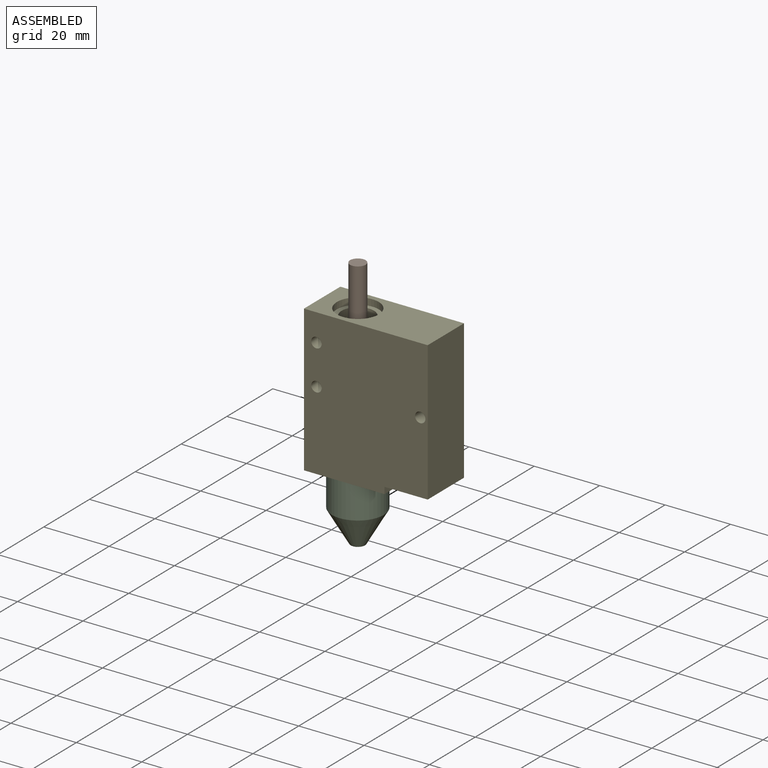
[diagram: assembled view]
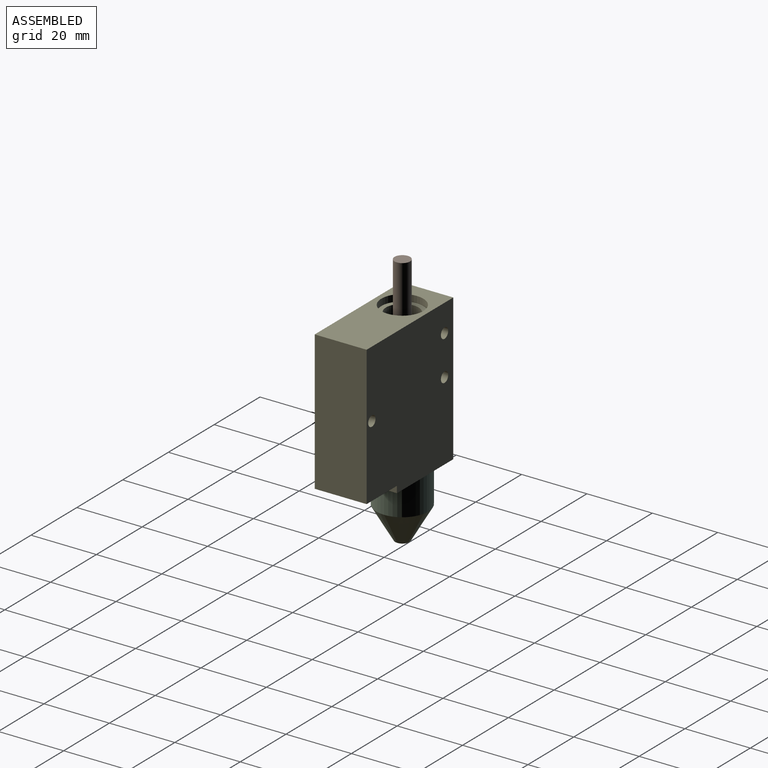
[diagram: assembled view, second angle]
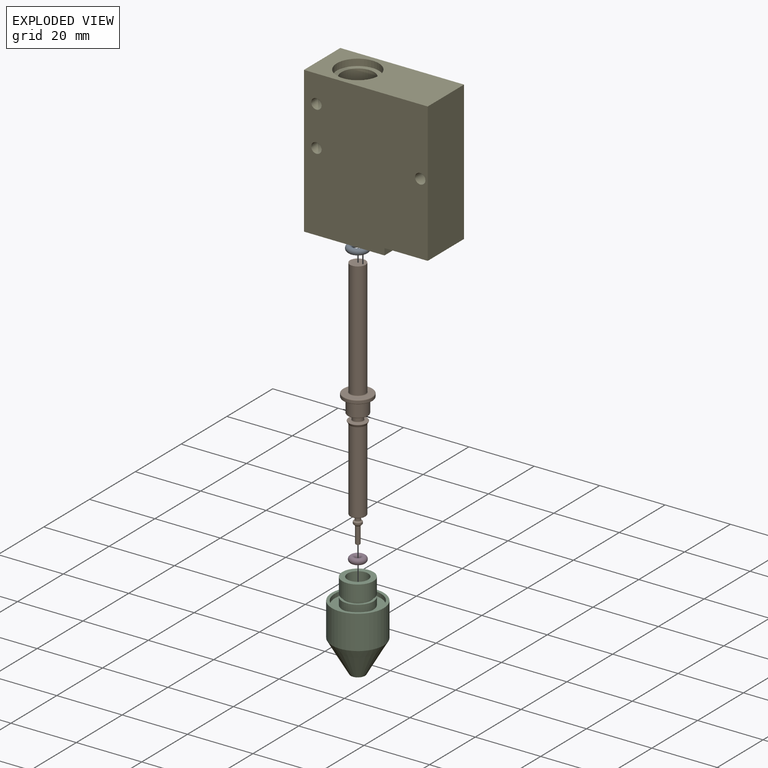
[diagram: exploded view]
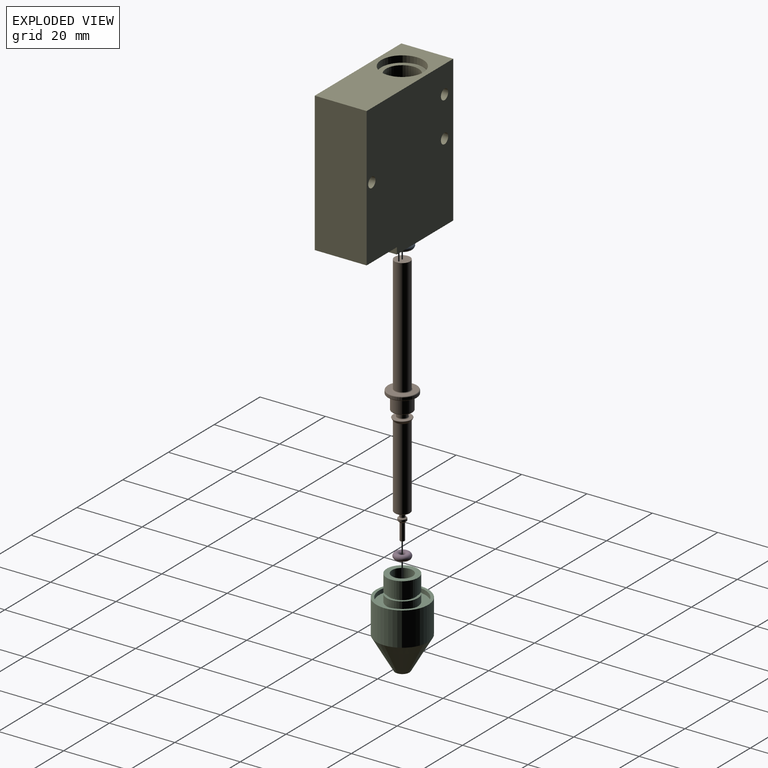
[diagram: exploded view, second angle]
ASSEMBLY  parts=5 mates=4
PART A: 1 faces, bbox 7x7x1.8 mm
  f0: torus R=2.34mm, axis (0,0,1), area 82mm2
PART B: 35 faces, bbox 9.7x9.7x77.8 mm
  f0: cylinder r=2.38mm len=35.69mm, axis (0,0,1), area 533.9mm2, adj f17,f25
  f1: plane 8.41x8.41mm, normal (0,0,1), area 33.7mm2, adj f25,f26
  f2: cylinder r=4.46mm len=8.92mm, axis (0,0,1), area 21.3mm2, adj f26,f27
  f3: plane 8.41x8.41mm, normal (0,0,-1), area 20.2mm2, adj f27,f28
  f4: cylinder r=3.1mm len=6.2mm, axis (0,0,1), area 77.2mm2, adj f28,f29
  f5: cone r=3.1mm half-angle=88.6deg, axis (0,0,-1), area 14.6mm2, adj f29,f30
  f6: cylinder r=1.59mm len=3.18mm, axis (0,0,1), area 13.9mm2, adj f30,f31
  f7: plane 5.35x5.35mm, normal (0,0,1), area 11.8mm2, adj f18,f31
  f8: cone r=2.38mm half-angle=30deg, axis (0,0,1), area 12.1mm2, adj f18,f32
  f9: cylinder r=2.38mm len=24.89mm, axis (0,0,1), area 372.5mm2, adj f19,f32
  f10: cone r=2.2mm half-angle=45deg, axis (0,0,1), area 0.6mm2, adj f19,f20
  f11: plane 4.19x4.19mm, normal (0,0,-1), area 10.2mm2, adj f20,f21
  f12: cylinder r=0.81mm len=1.63mm, axis (0,0,1), area 5.9mm2, adj f21,f33
  f13: cylinder r=1.27mm len=2.54mm, axis (0,0,1), area 3.4mm2, adj f22,f23
  f14: cone r=1.27mm half-angle=50deg, axis (0,0,1), area 3.1mm2, adj f23,f24
  f15: cylinder r=0.71mm len=4.83mm, axis (0,0,1), area 21.6mm2, adj f24,f34
  f16: plane 0.91x0.91mm, normal (0,0,-1), area 0.7mm2, adj f34
  f17: plane 4.76x4.76mm, normal (0,0,1), area 17.8mm2, adj f0
  f18: torus R=2.67mm, axis (0,0,-1), area 4.6mm2, adj f7,f8
  f19: torus R=2.13mm, axis (0,0,-1), area 3mm2, adj f9,f10
  f20: torus R=2.1mm, axis (0,0,1), area 2.7mm2, adj f10,f11
  f21: torus R=1.07mm, axis (0,0,1), area 2.3mm2, adj f11,f12
  f22: torus R=1.02mm, axis (0,0,-1), area 2.8mm2, adj f13,f33
  f23: torus R=1.02mm, axis (0,0,-1), area 1.7mm2, adj f13,f14
  f24: torus R=0.97mm, axis (0,0,1), area 1mm2, adj f14,f15
  f25: torus R=2.64mm, axis (0,0,-1), area 6.2mm2, adj f0,f1
  f26: torus R=4.2mm, axis (0,0,-1), area 10.9mm2, adj f1,f2
  f27: torus R=4.2mm, axis (0,0,-1), area 10.9mm2, adj f2,f3
  f28: torus R=3.35mm, axis (0,0,-1), area 8mm2, adj f3,f4
  f29: torus R=2.84mm, axis (0,0,-1), area 7.6mm2, adj f4,f5
  f30: torus R=1.84mm, axis (0,0,1), area 4.3mm2, adj f5,f6
  f31: torus R=1.84mm, axis (0,0,-1), area 4.2mm2, adj f6,f7
  f32: torus R=2.64mm, axis (0,0,1), area 2mm2, adj f8,f9
  f33: torus R=1.07mm, axis (0,0,1), area 2.1mm2, adj f12,f22
  f34: torus R=0.46mm, axis (0,0,1), area 1.6mm2, adj f15,f16
PART C: 19 faces, bbox 15.9x15.9x26.9 mm
  f0: cylinder r=7.05mm len=14.1mm, axis (0,0,1), area 56.2mm2, adj f1,f14
  f1: plane 15.88x15.88mm, normal (0,0,1), area 41.9mm2, adj f0,f2
  f2: cylinder r=7.94mm len=15.88mm, axis (0,0,1), area 514.3mm2, adj f1,f3
  f3: cone r=7.94mm half-angle=30deg, axis (0,0,1), area 364.6mm2, adj f2,f15
  f4: plane 4.02x4.02mm, normal (0,0,-1), area 2.1mm2, adj f15,f16
  f5: cylinder r=1.59mm len=5.99mm, axis (0,0,1), area 59.8mm2, adj f16,f17
  f6: cone r=3.17mm half-angle=45deg, axis (0,0,1), area 30.4mm2, adj f17,f18
  f7: cylinder r=3.17mm len=18.88mm, axis (0,0,1), area 376.7mm2, adj f8,f18
  f8: plane 9.53x9.53mm, normal (0,0,1), area 39.6mm2, adj f7,f9
  f9: cylinder r=4.76mm len=9.53mm, axis (0,0,1), area 144.4mm2, adj f8,f10
  f10: plane 9.53x9.53mm, normal (0,0,-1), area 21mm2, adj f9,f11
  f11: cylinder r=4mm len=8mm, axis (0,0,1), area 19.2mm2, adj f10,f12
  f12: plane 9.53x9.53mm, normal (0,0,1), area 21mm2, adj f11,f13
  f13: cylinder r=4.76mm len=9.53mm, axis (0,0,1), area 68.4mm2, adj f12,f14
  f14: plane 14.1x14.1mm, normal (0,0,1), area 84.8mm2, adj f0,f13
  f15: torus R=2.01mm, axis (0,0,1), area 3.6mm2, adj f3,f4
  f16: torus R=1.84mm, axis (0,0,1), area 4.2mm2, adj f4,f5
  f17: torus R=1.84mm, axis (0,0,-1), area 2mm2, adj f5,f6
  f18: torus R=2.92mm, axis (0,0,1), area 3.9mm2, adj f6,f7
PART D: 1 faces, bbox 5.4x5.4x1.8 mm
  f0: torus R=1.6mm, axis (0,0,1), area 56.2mm2
PART E: 20 faces, bbox 37.8x15.9x44.7 mm
  f0: plane 37.85x15.88mm, normal (0,0,1), area 471.1mm2, adj f1,f8,f9,f10,f19
  f1: plane 44.7x15.88mm, normal (-1,0,0), area 709.7mm2, adj f0,f2,f9,f10
  f2: plane 24.64x15.88mm, normal (0,0,-1), area 314.1mm2, adj f1,f3,f9,f10,f11
  f3: plane 15.88x2.03mm, normal (1,0,0), area 32.3mm2, adj f2,f4,f9,f10
  f4: plane 15.88x13.21mm, normal (0,0,-1), area 209.7mm2, adj f3,f8,f9,f10
  f5: cylinder r=1.59mm len=15.88mm, axis (0,1,0), area 158.3mm2, adj f9,f10
  f6: cylinder r=1.59mm len=15.88mm, axis (0,1,0), area 158.3mm2, adj f9,f10
  f7: cylinder r=1.59mm len=15.88mm, axis (0,1,0), area 158.3mm2, adj f9,f10
  f8: plane 42.67x15.88mm, normal (1,0,0), area 677.4mm2, adj f0,f4,f9,f10
  f9: plane 44.7x37.85mm, normal (0,-1,0), area 1641.3mm2, adj f0,f1,f2,f3,f4,f5,f6,f7
  f10: plane 44.7x37.85mm, normal (0,1,0), area 1641.3mm2, adj f0,f1,f2,f3,f4,f5,f6,f7
  f11: cylinder r=4.95mm len=9.91mm, axis (0,0,1), area 63.2mm2, adj f2,f12
  f12: plane 9.91x9.91mm, normal (0,0,-1), area 21.2mm2, adj f11,f13
  f13: cylinder r=4.22mm len=8.89mm, axis (0,0,1), area 235.5mm2, adj f12,f14
  f14: cone r=3.17mm half-angle=60deg, axis (0,0,-1), area 27.9mm2, adj f13,f15
  f15: cylinder r=3.17mm len=6.75mm, axis (0,0,1), area 134.6mm2, adj f14,f16
  f16: cone r=4.97mm half-angle=60deg, axis (0,0,1), area 52.9mm2, adj f15,f17
  f17: cylinder r=4.97mm len=23.37mm, axis (0,0,1), area 729.1mm2, adj f16,f18
  f18: plane 12.85x12.85mm, normal (0,0,1), area 52.3mm2, adj f17,f19
  f19: cylinder r=6.43mm len=12.85mm, axis (0,0,1), area 82mm2, adj f0,f18
PLACE A t=(-40.82,7.01,29.88)mm
PLACE B t=(-40.82,7.01,-14.76)mm
PLACE C t=(-40.82,7.01,31.12)mm
PLACE D t=(-40.82,7.01,-4.6)mm
PLACE E t=(-51.74,14.94,75.83)mm
MATE fastened D.f0 <-> C.f0  axis (0,0,1) through (-40.82,7.01,17.95)mm
MATE fastened B.f0 <-> A.f0  axis (0,0,1) through (-40.82,7.01,45.86)mm
MATE fastened C.f0 <-> E.f11  axis (0,0,1) through (-40.82,7.01,31.12)mm
MATE fastened B.f0 <-> D.f0  axis (0,0,1) through (-40.82,7.01,17.95)mm
